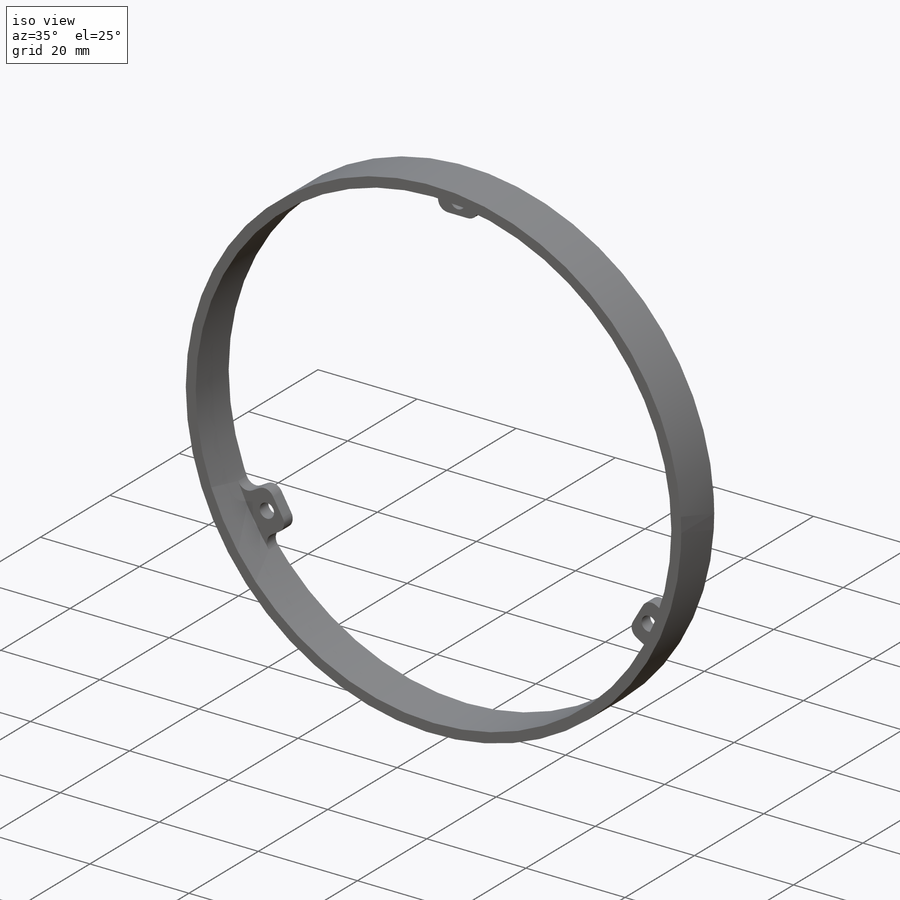
[diagram: iso view]
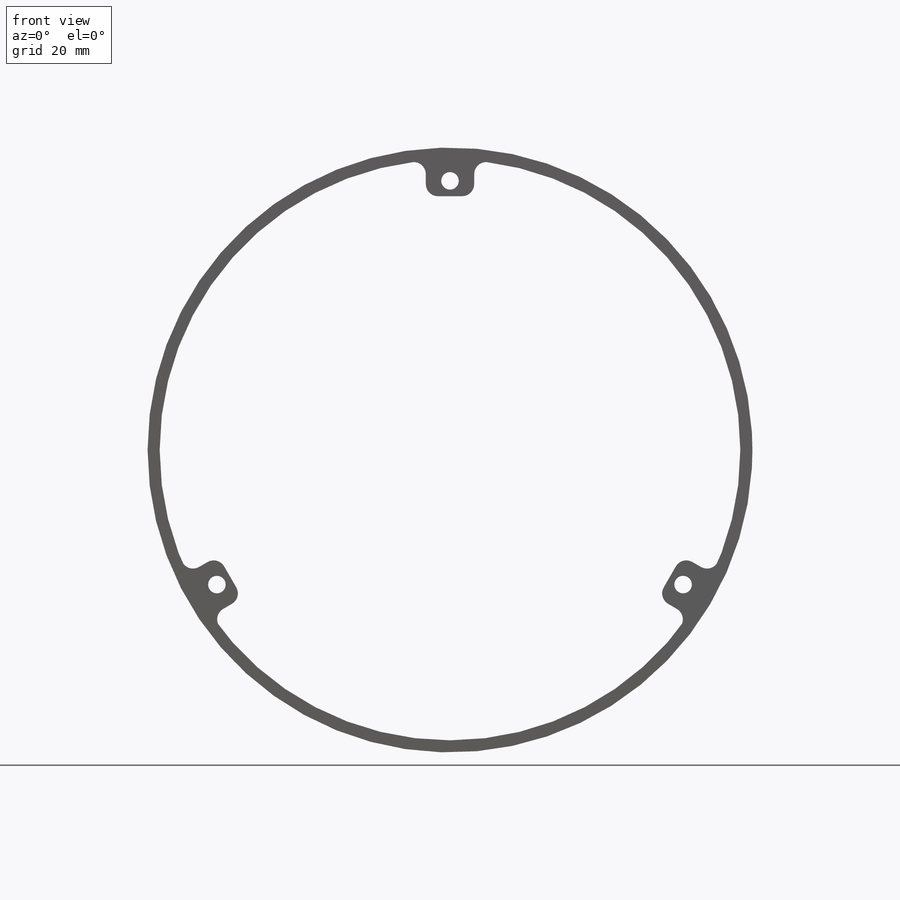
[diagram: front view]
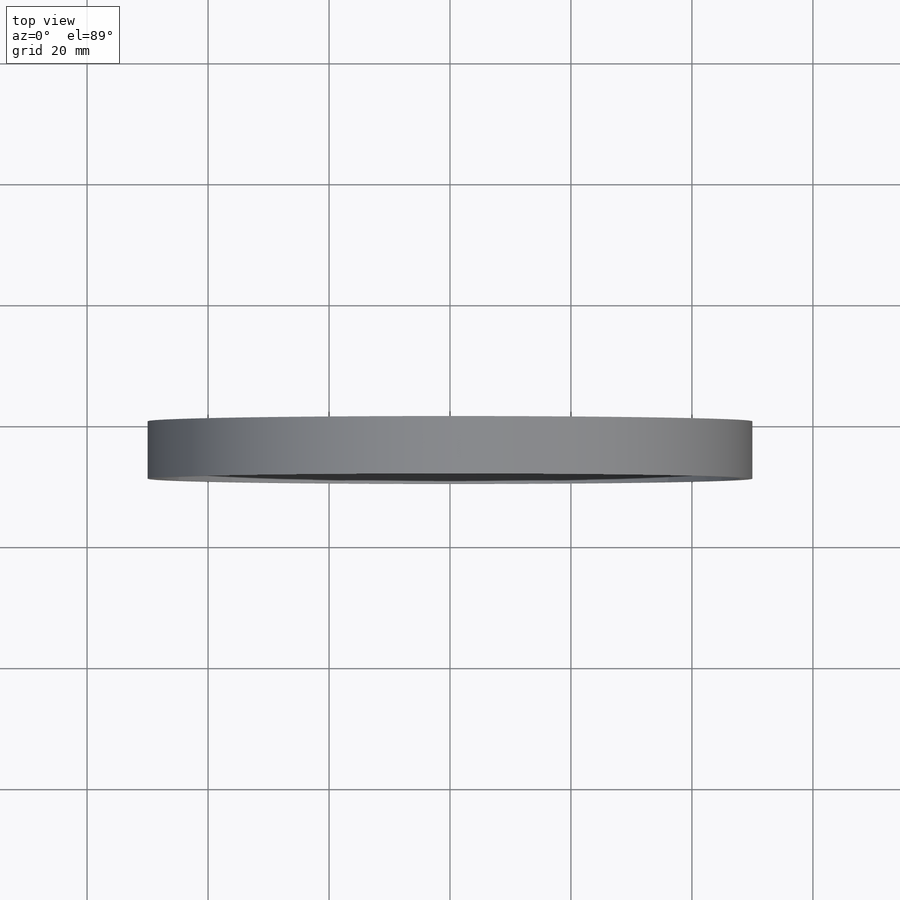
[diagram: top view]
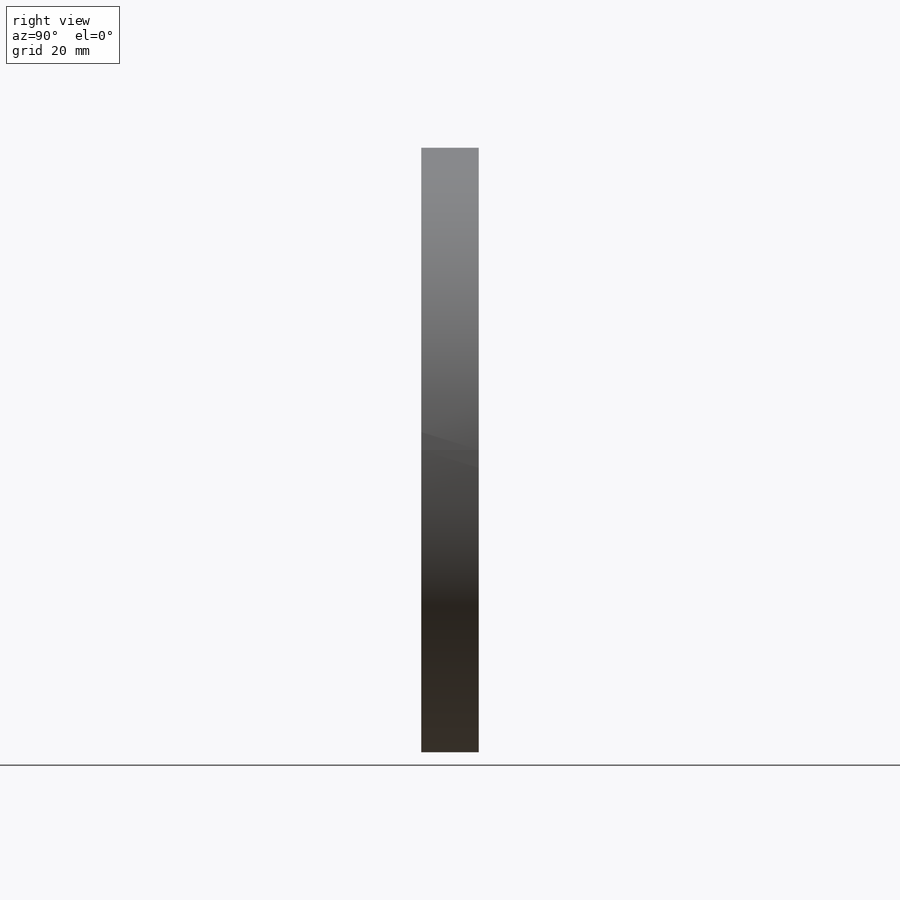
[diagram: right view]
SOLIDWORKS PART (.sldprt)
format: sldprt  version: not decoded by parser v0  size: 161,792 bytes
history: native  units: mm
features: sketch x3, extrude x2, material x1, cut_extrude x1, fillet x1, pattern_circular x1 (+14 scaffold rows collapsed)
feature tree (23):
  scaffold x14  (default folders/planes/origin — collapsed)
  material  "ABS"
  sketch  "Sketch1"  dims[D1=100.0mm D2=2.0mm]
  extrude  "Extrude1"  Depth=9.5mm
  sketch  "Sketch2"  dims[D1=6.0mm D2=8.0mm]
  extrude  "Extrude2"  Depth=2.5mm
  sketch  "Sketch3"  dims[c1.D1=2.9mm c1.D3=100.0mm c1.D2=44.5mm c2.D3=44.5mm]
  cut_extrude  "Extrude3"  Depth=2.5mm
  fillet  "Fillet1"  Radius=2mm
  pattern_circular  "CirPattern1"  Count=3 Angle=360deg
decode coverage: 8 of 8 modeling features carry decoded parameters
note: suppression state not decoded; provenance and decode notes live in map.json
